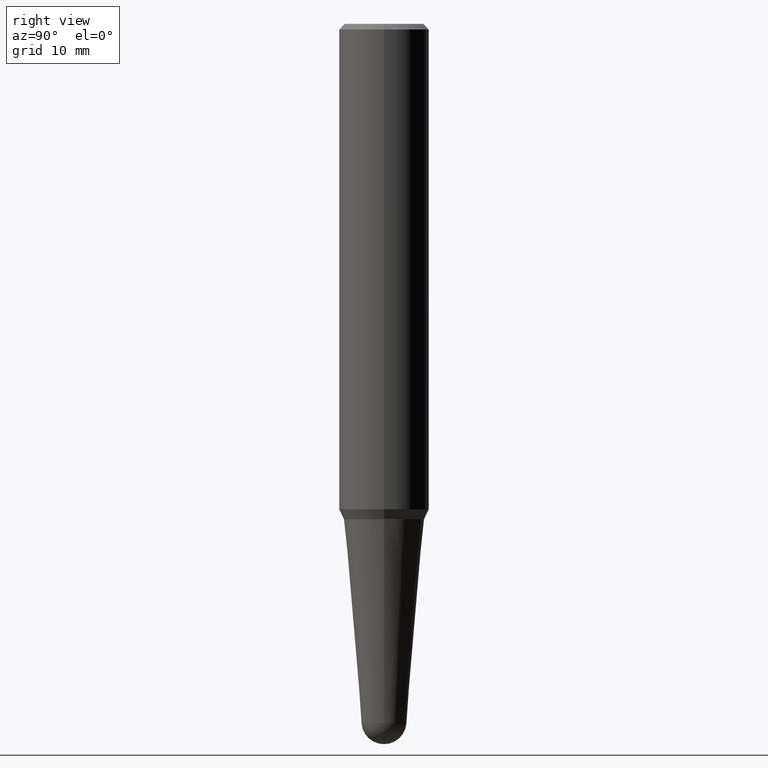
[diagram: clean part render]
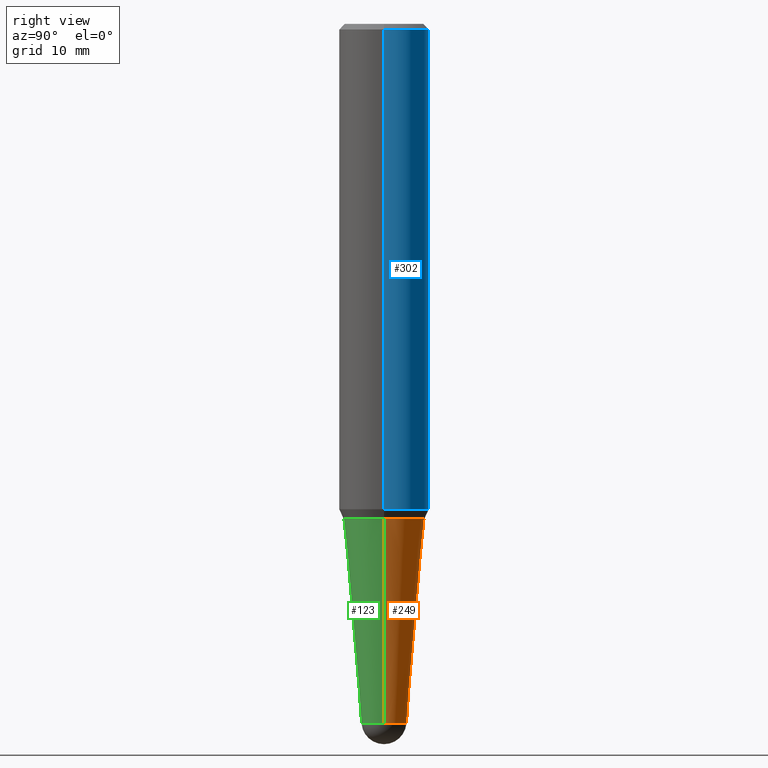
[diagram: same view with three faces highlighted in distinct colors, each labeled with its STEP entity id]
A machine part, right view with three faces highlighted in distinct colors.
Their STEP definitions:

[orange] entity #249 — the highlighted conical surface has half-angle 5 deg.
#6 = ORIENTED_EDGE ( 'NONE', *, *, #173, .T. ) ;
#21 = CARTESIAN_POINT ( 'NONE',  ( -0.1245243372614685956, -1.268272938652447627E-14, -3.885894467843457267 ) ) ;
#34 = DIRECTION ( 'NONE',  ( 0.08715574274765822138, 2.869589899488888117E-15, 0.9961946980917454342 ) ) ;
#37 = DIRECTION ( 'NONE',  ( -2.445468806185136597E-29, 3.491481338843145583E-15, 1.000000000000000000 ) ) ;
#48 = FACE_OUTER_BOUND ( 'NONE', #394, .T. ) ;
#54 = EDGE_CURVE ( 'NONE', #217, #336, #363, .T. ) ;
#56 = LINE ( 'NONE', #21, #260 ) ;
#64 = DIRECTION ( 'NONE',  ( -2.445468806185136597E-29, 3.491481338843145583E-15, 1.000000000000000000 ) ) ;
#66 = EDGE_CURVE ( 'NONE', #217, #410, #417, .T. ) ;
#74 = EDGE_CURVE ( 'NONE', #410, #279, #358, .T. ) ;
#84 = CARTESIAN_POINT ( 'NONE',  ( 8.695487995605473014E-16, 0.1245243372614550093, -3.885894467843458155 ) ) ;
#95 = AXIS2_PLACEMENT_3D ( 'NONE', #233, #186, #321 ) ;
#110 = DIRECTION ( 'NONE',  ( 1.000000000000000000, -6.982962677686265922E-15, 0.000000000000000000 ) ) ;
#114 = CARTESIAN_POINT ( 'NONE',  ( 0.1245243372614685956, -1.280107569464579605E-14, -3.885894467843457267 ) ) ;
#125 = CARTESIAN_POINT ( 'NONE',  ( -0.2239022261595834395, -8.010652678636579775E-15, -2.750000000000000000 ) ) ;
#136 = CARTESIAN_POINT ( 'NONE',  ( -0.1245243372614685956, -1.034669103258052724E-14, -3.885894467843457267 ) ) ;
#142 = CARTESIAN_POINT ( 'NONE',  ( 9.502833705238566151E-29, -1.356752801918924757E-14, -3.885894467843457267 ) ) ;
#146 = CARTESIAN_POINT ( 'NONE',  ( 9.502833705238566151E-29, -1.356752801918924757E-14, -3.885894467843457267 ) ) ;
#148 = ORIENTED_EDGE ( 'NONE', *, *, #66, .F. ) ;
#155 = VECTOR ( 'NONE', #34, 39.37007874015748143 ) ;
#161 = AXIS2_PLACEMENT_3D ( 'NONE', #301, #366, #331 ) ;
#166 = CIRCLE ( 'NONE', #238, 0.1245243372614685956 ) ;
#167 = DIRECTION ( 'NONE',  ( -0.08715574274765822138, 4.097473997133056981E-15, 0.9961946980917454342 ) ) ;
#173 = EDGE_CURVE ( 'NONE', #336, #420, #166, .T. ) ;
#175 = ORIENTED_EDGE ( 'NONE', *, *, #310, .T. ) ;
#186 = DIRECTION ( 'NONE',  ( -2.445468806185136597E-29, 3.491481338843145583E-15, 1.000000000000000000 ) ) ;
#217 = VERTEX_POINT ( 'NONE', #114 ) ;
#228 = DIRECTION ( 'NONE',  ( 1.000000000000000000, -6.982962677686265922E-15, 0.000000000000000000 ) ) ;
#233 = CARTESIAN_POINT ( 'NONE',  ( 6.725039217009124520E-29, -9.601573681818649859E-15, -2.750000000000000000 ) ) ;
#238 = AXIS2_PLACEMENT_3D ( 'NONE', #142, #37, #228 ) ;
#249 = ADVANCED_FACE ( 'NONE', ( #48 ), #445, .T. ) ;
#260 = VECTOR ( 'NONE', #167, 39.37007874015748143 ) ;
#279 = VERTEX_POINT ( 'NONE', #125 ) ;
#301 = CARTESIAN_POINT ( 'NONE',  ( 9.502833705238566151E-29, -1.356752801918924757E-14, -3.885894467843457267 ) ) ;
#304 = CARTESIAN_POINT ( 'NONE',  ( 0.2239022261595834395, -1.116507457054189200E-14, -2.750000000000000000 ) ) ;
#310 = EDGE_CURVE ( 'NONE', #420, #279, #56, .T. ) ;
#321 = DIRECTION ( 'NONE',  ( 1.000000000000000000, -6.982962677686268288E-15, 0.000000000000000000 ) ) ;
#331 = DIRECTION ( 'NONE',  ( 1.000000000000000000, -6.982962677686265922E-15, 0.000000000000000000 ) ) ;
#336 = VERTEX_POINT ( 'NONE', #84 ) ;
#337 = AXIS2_PLACEMENT_3D ( 'NONE', #146, #64, #110 ) ;
#358 = CIRCLE ( 'NONE', #95, 0.2239022261595834395 ) ;
#361 = ORIENTED_EDGE ( 'NONE', *, *, #74, .F. ) ;
#363 = CIRCLE ( 'NONE', #337, 0.1245243372614685956 ) ;
#366 = DIRECTION ( 'NONE',  ( -2.445468806185136597E-29, 3.491481338843145583E-15, 1.000000000000000000 ) ) ;
#372 = ORIENTED_EDGE ( 'NONE', *, *, #54, .T. ) ;
#394 = EDGE_LOOP ( 'NONE', ( #6, #175, #361, #148, #372 ) ) ;
#410 = VERTEX_POINT ( 'NONE', #304 ) ;
#417 = LINE ( 'NONE', #456, #155 ) ;
#420 = VERTEX_POINT ( 'NONE', #136 ) ;
#445 = CONICAL_SURFACE ( 'NONE', #161, 0.1245243372614685956, 0.08726646259971652941 ) ;
#456 = CARTESIAN_POINT ( 'NONE',  ( 0.1245243372614685956, -1.443707681874970169E-14, -3.885894467843457267 ) ) ;

[blue] entity #302 — the highlighted cylindrical surface (partial cylindrical patch) has radius 6.35 mm, axis along (-0, 0, 1).
#16 = CARTESIAN_POINT ( 'NONE',  ( -0.2500000000000003331, -7.635551372193098540E-15, -2.695677650309841855 ) ) ;
#17 = AXIS2_PLACEMENT_3D ( 'NONE', #87, #412, #371 ) ;
#24 = EDGE_CURVE ( 'NONE', #96, #137, #425, .T. ) ;
#27 = DIRECTION ( 'NONE',  ( -2.445468806185136877E-29, 3.491481338843145188E-15, 1.000000000000000000 ) ) ;
#85 = VERTEX_POINT ( 'NONE', #380 ) ;
#87 = CARTESIAN_POINT ( 'NONE',  ( -1.450455682483482035E-44, 2.070866303999251778E-30, 5.931196827434296760E-16 ) ) ;
#96 = VERTEX_POINT ( 'NONE', #421 ) ;
#107 = DIRECTION ( 'NONE',  ( -2.445468806185136597E-29, 3.491481338843145583E-15, 1.000000000000000000 ) ) ;
#109 = ORIENTED_EDGE ( 'NONE', *, *, #24, .F. ) ;
#137 = VERTEX_POINT ( 'NONE', #306 ) ;
#140 = CARTESIAN_POINT ( 'NONE',  ( 6.592195605363162692E-29, -9.411908211593352160E-15, -2.695677650309841855 ) ) ;
#149 = EDGE_CURVE ( 'NONE', #85, #96, #243, .T. ) ;
#150 = CARTESIAN_POINT ( 'NONE',  ( 0.2500000000000001665, -1.745740669421565692E-15, 5.931196827434418047E-16 ) ) ;
#171 = ORIENTED_EDGE ( 'NONE', *, *, #347, .T. ) ;
#177 = CARTESIAN_POINT ( 'NONE',  ( -0.2500000000000001665, 1.776356839400254015E-15, 5.931196827434174486E-16 ) ) ;
#196 = VECTOR ( 'NONE', #27, 39.37007874015748143 ) ;
#202 = EDGE_LOOP ( 'NONE', ( #171, #345, #109, #245 ) ) ;
#215 = CIRCLE ( 'NONE', #451, 0.2500000000000003331 ) ;
#243 = LINE ( 'NONE', #150, #280 ) ;
#245 = ORIENTED_EDGE ( 'NONE', *, *, #149, .F. ) ;
#269 = DIRECTION ( 'NONE',  ( 1.000000000000000000, -6.982962677686269077E-15, 0.000000000000000000 ) ) ;
#272 = DIRECTION ( 'NONE',  ( 1.000000000000000000, -6.982962677686266711E-15, 0.000000000000000000 ) ) ;
#280 = VECTOR ( 'NONE', #391, 39.37007874015748143 ) ;
#282 = CARTESIAN_POINT ( 'NONE',  ( 7.642090019328565002E-31, -1.091087918388484967E-16, -0.03125000000000005551 ) ) ;
#283 = LINE ( 'NONE', #177, #196 ) ;
#296 = FACE_OUTER_BOUND ( 'NONE', #202, .T. ) ;
#302 = ADVANCED_FACE ( 'NONE', ( #296 ), #406, .T. ) ;
#306 = CARTESIAN_POINT ( 'NONE',  ( -0.2500000000000000000, -2.984151662315848194E-15, -0.03125000000000005551 ) ) ;
#319 = VERTEX_POINT ( 'NONE', #16 ) ;
#345 = ORIENTED_EDGE ( 'NONE', *, *, #400, .T. ) ;
#347 = EDGE_CURVE ( 'NONE', #85, #319, #215, .T. ) ;
#371 = DIRECTION ( 'NONE',  ( 1.000000000000000000, -6.982962677686266711E-15, 4.852736867747362844E-29 ) ) ;
#376 = AXIS2_PLACEMENT_3D ( 'NONE', #282, #107, #272 ) ;
#379 = DIRECTION ( 'NONE',  ( -2.445468806185136597E-29, 3.491481338843145583E-15, 1.000000000000000000 ) ) ;
#380 = CARTESIAN_POINT ( 'NONE',  ( 0.2500000000000003331, -1.115764888101492199E-14, -2.695677650309841855 ) ) ;
#391 = DIRECTION ( 'NONE',  ( -2.445468806185136877E-29, 3.491481338843145188E-15, 1.000000000000000000 ) ) ;
#400 = EDGE_CURVE ( 'NONE', #319, #137, #283, .T. ) ;
#406 = CYLINDRICAL_SURFACE ( 'NONE', #17, 0.2500000000000001665 ) ;
#412 = DIRECTION ( 'NONE',  ( -2.445468806185136597E-29, 3.491481338843145583E-15, 1.000000000000000000 ) ) ;
#421 = CARTESIAN_POINT ( 'NONE',  ( 0.2500000000000000000, -1.854849461260415384E-15, -0.03125000000000005551 ) ) ;
#425 = CIRCLE ( 'NONE', #376, 0.2500000000000000000 ) ;
#451 = AXIS2_PLACEMENT_3D ( 'NONE', #140, #379, #269 ) ;

[green] entity #123 — the highlighted conical surface has half-angle 5 deg.
#1 = DIRECTION ( 'NONE',  ( 1.000000000000000000, -6.982962677686268288E-15, 0.000000000000000000 ) ) ;
#3 = DIRECTION ( 'NONE',  ( 1.000000000000000000, -6.982962677686265922E-15, 0.000000000000000000 ) ) ;
#5 = DIRECTION ( 'NONE',  ( -2.445468806185136597E-29, 3.491481338843145583E-15, 1.000000000000000000 ) ) ;
#21 = CARTESIAN_POINT ( 'NONE',  ( -0.1245243372614685956, -1.268272938652447627E-14, -3.885894467843457267 ) ) ;
#29 = CARTESIAN_POINT ( 'NONE',  ( 9.502833705238566151E-29, -1.356752801918924757E-14, -3.885894467843457267 ) ) ;
#34 = DIRECTION ( 'NONE',  ( 0.08715574274765822138, 2.869589899488888117E-15, 0.9961946980917454342 ) ) ;
#36 = ORIENTED_EDGE ( 'NONE', *, *, #390, .F. ) ;
#56 = LINE ( 'NONE', #21, #260 ) ;
#57 = ORIENTED_EDGE ( 'NONE', *, *, #418, .T. ) ;
#65 = DIRECTION ( 'NONE',  ( 1.000000000000000000, -6.982962677686265922E-15, 0.000000000000000000 ) ) ;
#66 = EDGE_CURVE ( 'NONE', #217, #410, #417, .T. ) ;
#73 = AXIS2_PLACEMENT_3D ( 'NONE', #108, #244, #1 ) ;
#93 = CARTESIAN_POINT ( 'NONE',  ( 9.502833705238566151E-29, -1.356752801918924757E-14, -3.885894467843457267 ) ) ;
#108 = CARTESIAN_POINT ( 'NONE',  ( 6.725039217009124520E-29, -9.601573681818649859E-15, -2.750000000000000000 ) ) ;
#114 = CARTESIAN_POINT ( 'NONE',  ( 0.1245243372614685956, -1.280107569464579605E-14, -3.885894467843457267 ) ) ;
#116 = CONICAL_SURFACE ( 'NONE', #295, 0.1245243372614685956, 0.08726646259971652941 ) ;
#121 = DIRECTION ( 'NONE',  ( -2.445468806185136597E-29, 3.491481338843145583E-15, 1.000000000000000000 ) ) ;
#123 = ADVANCED_FACE ( 'NONE', ( #316 ), #116, .T. ) ;
#125 = CARTESIAN_POINT ( 'NONE',  ( -0.2239022261595834395, -8.010652678636579775E-15, -2.750000000000000000 ) ) ;
#136 = CARTESIAN_POINT ( 'NONE',  ( -0.1245243372614685956, -1.034669103258052724E-14, -3.885894467843457267 ) ) ;
#155 = VECTOR ( 'NONE', #34, 39.37007874015748143 ) ;
#167 = DIRECTION ( 'NONE',  ( -0.08715574274765822138, 4.097473997133056981E-15, 0.9961946980917454342 ) ) ;
#169 = DIRECTION ( 'NONE',  ( -2.445468806185136597E-29, 3.491481338843145583E-15, 1.000000000000000000 ) ) ;
#182 = ORIENTED_EDGE ( 'NONE', *, *, #66, .T. ) ;
#198 = ORIENTED_EDGE ( 'NONE', *, *, #326, .T. ) ;
#217 = VERTEX_POINT ( 'NONE', #114 ) ;
#226 = DIRECTION ( 'NONE',  ( 1.000000000000000000, -6.982962677686265922E-15, 0.000000000000000000 ) ) ;
#237 = EDGE_LOOP ( 'NONE', ( #433, #57, #198, #182, #36 ) ) ;
#244 = DIRECTION ( 'NONE',  ( -2.445468806185136597E-29, 3.491481338843145583E-15, 1.000000000000000000 ) ) ;
#260 = VECTOR ( 'NONE', #167, 39.37007874015748143 ) ;
#268 = VERTEX_POINT ( 'NONE', #373 ) ;
#279 = VERTEX_POINT ( 'NONE', #125 ) ;
#295 = AXIS2_PLACEMENT_3D ( 'NONE', #29, #169, #3 ) ;
#304 = CARTESIAN_POINT ( 'NONE',  ( 0.2239022261595834395, -1.116507457054189200E-14, -2.750000000000000000 ) ) ;
#308 = CIRCLE ( 'NONE', #325, 0.1245243372614685956 ) ;
#310 = EDGE_CURVE ( 'NONE', #420, #279, #56, .T. ) ;
#314 = CARTESIAN_POINT ( 'NONE',  ( 9.502833705238566151E-29, -1.356752801918924757E-14, -3.885894467843457267 ) ) ;
#316 = FACE_OUTER_BOUND ( 'NONE', #237, .T. ) ;
#325 = AXIS2_PLACEMENT_3D ( 'NONE', #93, #121, #226 ) ;
#326 = EDGE_CURVE ( 'NONE', #268, #217, #308, .T. ) ;
#368 = CIRCLE ( 'NONE', #73, 0.2239022261595834395 ) ;
#373 = CARTESIAN_POINT ( 'NONE',  ( -8.847986326646746648E-16, -0.1245243372614817517, -3.885894467843456823 ) ) ;
#390 = EDGE_CURVE ( 'NONE', #279, #410, #368, .T. ) ;
#397 = CIRCLE ( 'NONE', #455, 0.1245243372614685956 ) ;
#410 = VERTEX_POINT ( 'NONE', #304 ) ;
#417 = LINE ( 'NONE', #456, #155 ) ;
#418 = EDGE_CURVE ( 'NONE', #420, #268, #397, .T. ) ;
#420 = VERTEX_POINT ( 'NONE', #136 ) ;
#433 = ORIENTED_EDGE ( 'NONE', *, *, #310, .F. ) ;
#455 = AXIS2_PLACEMENT_3D ( 'NONE', #314, #5, #65 ) ;
#456 = CARTESIAN_POINT ( 'NONE',  ( 0.1245243372614685956, -1.443707681874970169E-14, -3.885894467843457267 ) ) ;